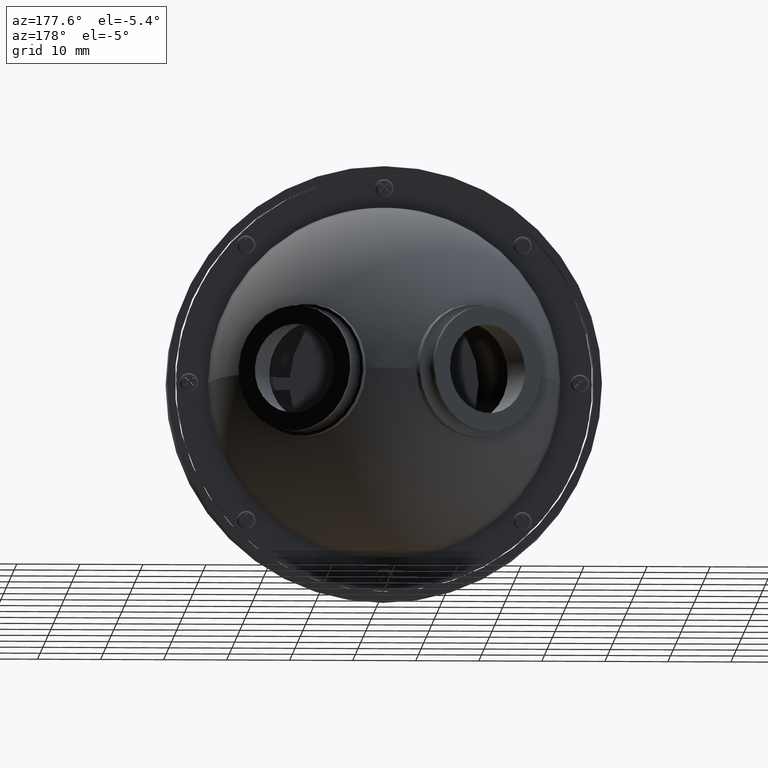
[diagram: clean part render]
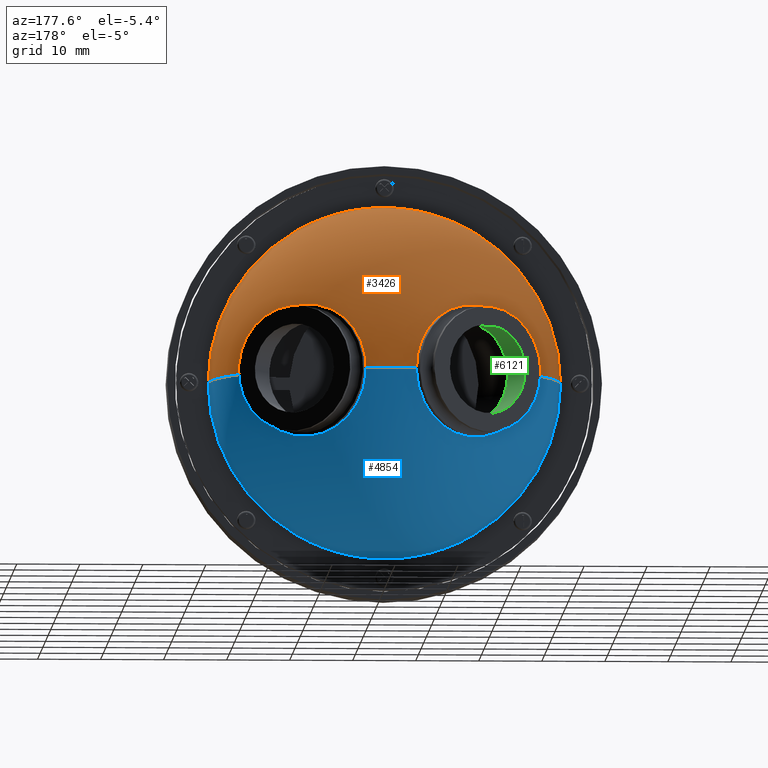
[diagram: same view with three faces highlighted in distinct colors, each labeled with its STEP entity id]
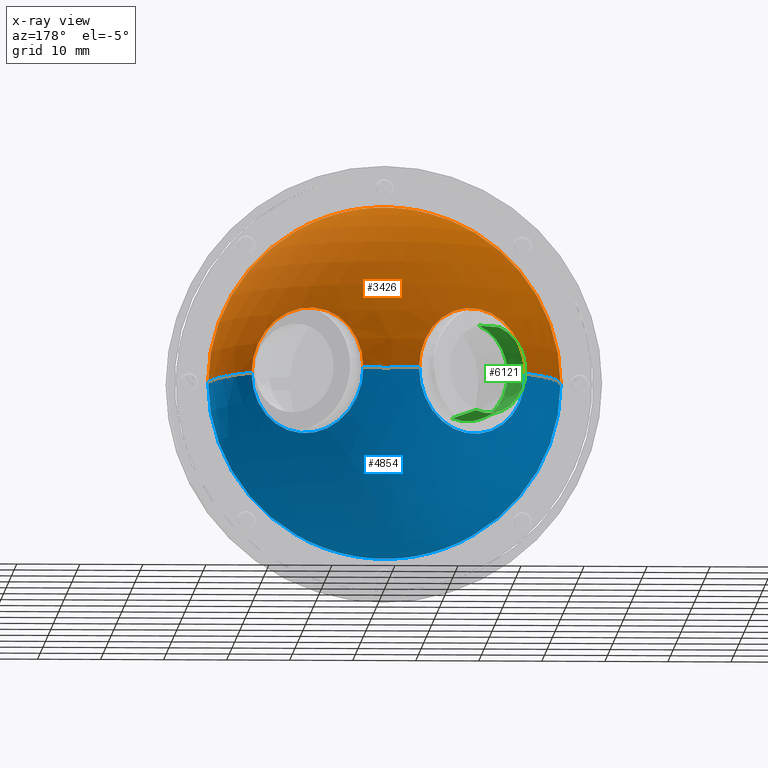
[diagram: x-ray of the same camera — body ghosted, the three highlighted faces saturated]
A machine part, auxiliary view with three faces highlighted in distinct colors.
The next image is the same camera in x-ray (body ghosted, the three faces saturated) — at least one of them is partly hidden behind the body in this view.
Their STEP definitions:

[orange] entity #3426 — the highlighted spherical surface has radius 28 mm.
#152 = AXIS2_PLACEMENT_3D ( 'NONE', #6036, #2718, #2107 ) ;
#230 = ORIENTED_EDGE ( 'NONE', *, *, #2391, .F. ) ;
#250 = VERTEX_POINT ( 'NONE', #361 ) ;
#286 = AXIS2_PLACEMENT_3D ( 'NONE', #2766, #7701, #3227 ) ;
#361 = CARTESIAN_POINT ( 'NONE',  ( 30.22096981807467131, -0.2613625813718961632, 0.000000000000000000 ) ) ;
#418 = CIRCLE ( 'NONE', #152, 27.95979256003163016 ) ;
#437 = CARTESIAN_POINT ( 'NONE',  ( -19.47577361042331745, -16.41086588718419748, 3.424087046346671680E-15 ) ) ;
#447 = CIRCLE ( 'NONE', #5171, 28.00000000000000000 ) ;
#530 = DIRECTION ( 'NONE',  ( 0.000000000000000000, 0.000000000000000000, 1.000000000000000000 ) ) ;
#602 = VERTEX_POINT ( 'NONE', #4543 ) ;
#630 = DIRECTION ( 'NONE',  ( 1.224646799147353207E-16, -0.000000000000000000, 1.000000000000000000 ) ) ;
#702 = DIRECTION ( 'NONE',  ( 1.000000000000000000, 0.000000000000000000, -1.224646799147353207E-16 ) ) ;
#838 = CIRCLE ( 'NONE', #7918, 10.00000000000000711 ) ;
#895 = EDGE_CURVE ( 'NONE', #4437, #3113, #447, .T. ) ;
#1037 = EDGE_CURVE ( 'NONE', #602, #4333, #4901, .T. ) ;
#1288 = DIRECTION ( 'NONE',  ( 0.4999999999999975020, 0.8660254037844400399, 0.000000000000000000 ) ) ;
#1569 = DIRECTION ( 'NONE',  ( 0.8660254037844415942, 0.4999999999999947820, 0.000000000000000000 ) ) ;
#1824 = CARTESIAN_POINT ( 'NONE',  ( 8.484018949608307381, -17.91086588718419748, 0.000000000000000000 ) ) ;
#2107 = DIRECTION ( 'NONE',  ( 0.000000000000000000, 0.000000000000000000, -1.000000000000000000 ) ) ;
#2214 = EDGE_LOOP ( 'NONE', ( #4344, #4687, #6219, #7385, #4581, #7455, #230 ) ) ;
#2273 = CIRCLE ( 'NONE', #286, 28.00000000000000000 ) ;
#2391 = EDGE_CURVE ( 'NONE', #6206, #250, #838, .T. ) ;
#2442 = AXIS2_PLACEMENT_3D ( 'NONE', #1824, #3691, #6197 ) ;
#2718 = DIRECTION ( 'NONE',  ( -0.000000000000000000, 1.000000000000000000, -0.000000000000000000 ) ) ;
#2729 = DIRECTION ( 'NONE',  ( 1.000000000000000000, 0.000000000000000000, -1.224646799147353207E-16 ) ) ;
#2754 = CARTESIAN_POINT ( 'NONE',  ( -4.592677881013579544, 4.738637418628132814, 0.000000000000000000 ) ) ;
#2766 = CARTESIAN_POINT ( 'NONE',  ( 8.484018949608307381, -17.91086588718419748, 0.000000000000000000 ) ) ;
#2781 = CARTESIAN_POINT ( 'NONE',  ( 21.56071578023026447, 4.738637418628083964, 0.000000000000000000 ) ) ;
#3006 = CARTESIAN_POINT ( 'NONE',  ( 8.484018949608307381, -17.91086588718419748, 0.000000000000000000 ) ) ;
#3037 = DIRECTION ( 'NONE',  ( 1.000000000000000000, 0.000000000000000000, 0.000000000000000000 ) ) ;
#3092 = AXIS2_PLACEMENT_3D ( 'NONE', #2754, #6665, #1569 ) ;
#3113 = VERTEX_POINT ( 'NONE', #4897 ) ;
#3227 = DIRECTION ( 'NONE',  ( -1.000000000000000000, 0.000000000000000000, 0.000000000000000000 ) ) ;
#3426 = ADVANCED_FACE ( 'NONE', ( #5597 ), #5510, .T. ) ;
#3612 = CIRCLE ( 'NONE', #2442, 28.00000000000000000 ) ;
#3691 = DIRECTION ( 'NONE',  ( 0.000000000000000000, 0.000000000000000000, -1.000000000000000000 ) ) ;
#3925 = CARTESIAN_POINT ( 'NONE',  ( 12.90046174238585230, 9.738637418628066200, 0.000000000000000000 ) ) ;
#4237 = EDGE_CURVE ( 'NONE', #4333, #5882, #418, .T. ) ;
#4333 = VERTEX_POINT ( 'NONE', #437 ) ;
#4344 = ORIENTED_EDGE ( 'NONE', *, *, #7495, .F. ) ;
#4437 = VERTEX_POINT ( 'NONE', #5734 ) ;
#4462 = EDGE_CURVE ( 'NONE', #250, #5882, #2273, .T. ) ;
#4519 = DIRECTION ( 'NONE',  ( 0.8660254037844400399, -0.4999999999999976685, 0.000000000000000000 ) ) ;
#4543 = CARTESIAN_POINT ( 'NONE',  ( -13.25293191885799615, -0.2613625813718163382, 2.662008730429053827E-15 ) ) ;
#4581 = ORIENTED_EDGE ( 'NONE', *, *, #4237, .T. ) ;
#4641 = AXIS2_PLACEMENT_3D ( 'NONE', #5922, #6451, #2729 ) ;
#4687 = ORIENTED_EDGE ( 'NONE', *, *, #895, .T. ) ;
#4897 = CARTESIAN_POINT ( 'NONE',  ( 4.067576156830836176, 9.738637418628080411, 5.408582529792328972E-16 ) ) ;
#4901 = CIRCLE ( 'NONE', #4641, 28.00000000000000000 ) ;
#5171 = AXIS2_PLACEMENT_3D ( 'NONE', #6334, #630, #702 ) ;
#5510 = SPHERICAL_SURFACE ( 'NONE', #7037, 28.00000000000000000 ) ;
#5597 = FACE_OUTER_BOUND ( 'NONE', #2214, .T. ) ;
#5734 = CARTESIAN_POINT ( 'NONE',  ( 8.484018949608309157, 10.08913411281580075, 0.000000000000000000 ) ) ;
#5882 = VERTEX_POINT ( 'NONE', #7946 ) ;
#5922 = CARTESIAN_POINT ( 'NONE',  ( 8.484018949608307381, -17.91086588718419748, 0.000000000000000000 ) ) ;
#6036 = CARTESIAN_POINT ( 'NONE',  ( 8.484018949608307381, -16.41086588718419748, 0.000000000000000000 ) ) ;
#6197 = DIRECTION ( 'NONE',  ( -1.000000000000000000, 0.000000000000000000, 0.000000000000000000 ) ) ;
#6206 = VERTEX_POINT ( 'NONE', #3925 ) ;
#6219 = ORIENTED_EDGE ( 'NONE', *, *, #6688, .T. ) ;
#6334 = CARTESIAN_POINT ( 'NONE',  ( 8.484018949608307381, -17.91086588718419748, 0.000000000000000000 ) ) ;
#6451 = DIRECTION ( 'NONE',  ( 1.224646799147353207E-16, -0.000000000000000000, 1.000000000000000000 ) ) ;
#6645 = CIRCLE ( 'NONE', #3092, 10.00000000000000178 ) ;
#6665 = DIRECTION ( 'NONE',  ( 0.4999999999999948930, -0.8660254037844417052, -0.000000000000000000 ) ) ;
#6688 = EDGE_CURVE ( 'NONE', #3113, #602, #6645, .T. ) ;
#7037 = AXIS2_PLACEMENT_3D ( 'NONE', #3006, #530, #3037 ) ;
#7385 = ORIENTED_EDGE ( 'NONE', *, *, #1037, .T. ) ;
#7455 = ORIENTED_EDGE ( 'NONE', *, *, #4462, .F. ) ;
#7495 = EDGE_CURVE ( 'NONE', #4437, #6206, #3612, .T. ) ;
#7701 = DIRECTION ( 'NONE',  ( 0.000000000000000000, 0.000000000000000000, -1.000000000000000000 ) ) ;
#7918 = AXIS2_PLACEMENT_3D ( 'NONE', #2781, #1288, #4519 ) ;
#7946 = CARTESIAN_POINT ( 'NONE',  ( 36.44381150963993576, -16.41086588718419748, 0.000000000000000000 ) ) ;

[blue] entity #4854 — the highlighted spherical surface has radius 28 mm.
#16 = CARTESIAN_POINT ( 'NONE',  ( -4.592677881013579544, 4.738637418628132814, 0.000000000000000000 ) ) ;
#162 = FACE_OUTER_BOUND ( 'NONE', #4994, .T. ) ;
#211 = CIRCLE ( 'NONE', #1802, 10.00000000000000711 ) ;
#250 = VERTEX_POINT ( 'NONE', #361 ) ;
#286 = AXIS2_PLACEMENT_3D ( 'NONE', #2766, #7701, #3227 ) ;
#361 = CARTESIAN_POINT ( 'NONE',  ( 30.22096981807467131, -0.2613625813718961632, 0.000000000000000000 ) ) ;
#437 = CARTESIAN_POINT ( 'NONE',  ( -19.47577361042331745, -16.41086588718419748, 3.424087046346671680E-15 ) ) ;
#447 = CIRCLE ( 'NONE', #5171, 28.00000000000000000 ) ;
#602 = VERTEX_POINT ( 'NONE', #4543 ) ;
#630 = DIRECTION ( 'NONE',  ( 1.224646799147353207E-16, -0.000000000000000000, 1.000000000000000000 ) ) ;
#702 = DIRECTION ( 'NONE',  ( 1.000000000000000000, 0.000000000000000000, -1.224646799147353207E-16 ) ) ;
#866 = AXIS2_PLACEMENT_3D ( 'NONE', #5016, #8056, #6802 ) ;
#895 = EDGE_CURVE ( 'NONE', #4437, #3113, #447, .T. ) ;
#1037 = EDGE_CURVE ( 'NONE', #602, #4333, #4901, .T. ) ;
#1395 = CARTESIAN_POINT ( 'NONE',  ( 21.56071578023026447, 4.738637418628083964, 0.000000000000000000 ) ) ;
#1484 = SPHERICAL_SURFACE ( 'NONE', #6343, 28.00000000000000000 ) ;
#1666 = ORIENTED_EDGE ( 'NONE', *, *, #6845, .F. ) ;
#1802 = AXIS2_PLACEMENT_3D ( 'NONE', #1395, #4618, #3278 ) ;
#1824 = CARTESIAN_POINT ( 'NONE',  ( 8.484018949608307381, -17.91086588718419748, 0.000000000000000000 ) ) ;
#1967 = EDGE_CURVE ( 'NONE', #5882, #4333, #2192, .T. ) ;
#2192 = CIRCLE ( 'NONE', #866, 27.95979256003163016 ) ;
#2273 = CIRCLE ( 'NONE', #286, 28.00000000000000000 ) ;
#2319 = CIRCLE ( 'NONE', #6773, 10.00000000000000178 ) ;
#2442 = AXIS2_PLACEMENT_3D ( 'NONE', #1824, #3691, #6197 ) ;
#2729 = DIRECTION ( 'NONE',  ( 1.000000000000000000, 0.000000000000000000, -1.224646799147353207E-16 ) ) ;
#2756 = DIRECTION ( 'NONE',  ( 1.000000000000000000, 0.000000000000000000, 0.000000000000000000 ) ) ;
#2766 = CARTESIAN_POINT ( 'NONE',  ( 8.484018949608307381, -17.91086588718419748, 0.000000000000000000 ) ) ;
#3113 = VERTEX_POINT ( 'NONE', #4897 ) ;
#3227 = DIRECTION ( 'NONE',  ( -1.000000000000000000, 0.000000000000000000, 0.000000000000000000 ) ) ;
#3245 = ORIENTED_EDGE ( 'NONE', *, *, #4462, .T. ) ;
#3278 = DIRECTION ( 'NONE',  ( 0.8660254037844400399, -0.4999999999999976685, 0.000000000000000000 ) ) ;
#3612 = CIRCLE ( 'NONE', #2442, 28.00000000000000000 ) ;
#3691 = DIRECTION ( 'NONE',  ( 0.000000000000000000, 0.000000000000000000, -1.000000000000000000 ) ) ;
#3925 = CARTESIAN_POINT ( 'NONE',  ( 12.90046174238585230, 9.738637418628066200, 0.000000000000000000 ) ) ;
#4333 = VERTEX_POINT ( 'NONE', #437 ) ;
#4437 = VERTEX_POINT ( 'NONE', #5734 ) ;
#4462 = EDGE_CURVE ( 'NONE', #250, #5882, #2273, .T. ) ;
#4543 = CARTESIAN_POINT ( 'NONE',  ( -13.25293191885799615, -0.2613625813718163382, 2.662008730429053827E-15 ) ) ;
#4618 = DIRECTION ( 'NONE',  ( 0.4999999999999975020, 0.8660254037844400399, 0.000000000000000000 ) ) ;
#4641 = AXIS2_PLACEMENT_3D ( 'NONE', #5922, #6451, #2729 ) ;
#4854 = ADVANCED_FACE ( 'NONE', ( #162 ), #1484, .T. ) ;
#4897 = CARTESIAN_POINT ( 'NONE',  ( 4.067576156830836176, 9.738637418628080411, 5.408582529792328972E-16 ) ) ;
#4901 = CIRCLE ( 'NONE', #4641, 28.00000000000000000 ) ;
#4953 = ORIENTED_EDGE ( 'NONE', *, *, #895, .F. ) ;
#4959 = DIRECTION ( 'NONE',  ( 0.4999999999999948930, -0.8660254037844417052, -0.000000000000000000 ) ) ;
#4994 = EDGE_LOOP ( 'NONE', ( #4953, #6158, #1666, #3245, #7336, #5369, #5107 ) ) ;
#5016 = CARTESIAN_POINT ( 'NONE',  ( 8.484018949608307381, -16.41086588718419748, 0.000000000000000000 ) ) ;
#5107 = ORIENTED_EDGE ( 'NONE', *, *, #7861, .T. ) ;
#5135 = CARTESIAN_POINT ( 'NONE',  ( 8.484018949608307381, -17.91086588718419748, 0.000000000000000000 ) ) ;
#5171 = AXIS2_PLACEMENT_3D ( 'NONE', #6334, #630, #702 ) ;
#5224 = DIRECTION ( 'NONE',  ( 0.000000000000000000, 0.000000000000000000, 1.000000000000000000 ) ) ;
#5369 = ORIENTED_EDGE ( 'NONE', *, *, #1037, .F. ) ;
#5734 = CARTESIAN_POINT ( 'NONE',  ( 8.484018949608309157, 10.08913411281580075, 0.000000000000000000 ) ) ;
#5882 = VERTEX_POINT ( 'NONE', #7946 ) ;
#5922 = CARTESIAN_POINT ( 'NONE',  ( 8.484018949608307381, -17.91086588718419748, 0.000000000000000000 ) ) ;
#6158 = ORIENTED_EDGE ( 'NONE', *, *, #7495, .T. ) ;
#6197 = DIRECTION ( 'NONE',  ( -1.000000000000000000, 0.000000000000000000, 0.000000000000000000 ) ) ;
#6206 = VERTEX_POINT ( 'NONE', #3925 ) ;
#6334 = CARTESIAN_POINT ( 'NONE',  ( 8.484018949608307381, -17.91086588718419748, 0.000000000000000000 ) ) ;
#6343 = AXIS2_PLACEMENT_3D ( 'NONE', #5135, #5224, #2756 ) ;
#6451 = DIRECTION ( 'NONE',  ( 1.224646799147353207E-16, -0.000000000000000000, 1.000000000000000000 ) ) ;
#6773 = AXIS2_PLACEMENT_3D ( 'NONE', #16, #4959, #7547 ) ;
#6802 = DIRECTION ( 'NONE',  ( 0.000000000000000000, 0.000000000000000000, -1.000000000000000000 ) ) ;
#6845 = EDGE_CURVE ( 'NONE', #250, #6206, #211, .T. ) ;
#7336 = ORIENTED_EDGE ( 'NONE', *, *, #1967, .T. ) ;
#7495 = EDGE_CURVE ( 'NONE', #4437, #6206, #3612, .T. ) ;
#7547 = DIRECTION ( 'NONE',  ( 0.8660254037844415942, 0.4999999999999947820, 0.000000000000000000 ) ) ;
#7701 = DIRECTION ( 'NONE',  ( 0.000000000000000000, 0.000000000000000000, -1.000000000000000000 ) ) ;
#7861 = EDGE_CURVE ( 'NONE', #602, #3113, #2319, .T. ) ;
#7946 = CARTESIAN_POINT ( 'NONE',  ( 36.44381150963993576, -16.41086588718419748, 0.000000000000000000 ) ) ;
#8056 = DIRECTION ( 'NONE',  ( -0.000000000000000000, 1.000000000000000000, -0.000000000000000000 ) ) ;

[green] entity #6121 — the highlighted conical surface has half-angle 7.326 deg.
#137 = VERTEX_POINT ( 'NONE', #4380 ) ;
#168 = DIRECTION ( 'NONE',  ( 0.2712180811185178619, 0.1565878321428679221, -0.9496952160031060242 ) ) ;
#234 = EDGE_CURVE ( 'NONE', #1964, #6151, #3983, .T. ) ;
#240 = DIRECTION ( 'NONE',  ( 0.5305040899661679354, -0.8389866245831228975, -0.1211067888261678493 ) ) ;
#267 = DIRECTION ( 'NONE',  ( -0.2712180811185179174, -0.1565878321428678943, 0.9496952160031060242 ) ) ;
#739 = VECTOR ( 'NONE', #3039, 999.9999999999998863 ) ;
#888 = DIRECTION ( 'NONE',  ( -0.4999999999999947820, 0.8660254037844415942, 0.000000000000000000 ) ) ;
#1038 = ORIENTED_EDGE ( 'NONE', *, *, #2812, .F. ) ;
#1233 = EDGE_LOOP ( 'NONE', ( #1968, #7094, #1038, #5264 ) ) ;
#1964 = VERTEX_POINT ( 'NONE', #5640 ) ;
#1968 = ORIENTED_EDGE ( 'NONE', *, *, #234, .F. ) ;
#2119 = DIRECTION ( 'NONE',  ( 0.4999999999999947820, -0.8660254037844415942, -0.000000000000000000 ) ) ;
#2659 = VERTEX_POINT ( 'NONE', #3682 ) ;
#2812 = EDGE_CURVE ( 'NONE', #2659, #137, #7141, .T. ) ;
#2824 = LINE ( 'NONE', #4055, #739 ) ;
#3039 = DIRECTION ( 'NONE',  ( 0.4613316853412479102, -0.8789233310138137023, 0.1211067888261678493 ) ) ;
#3222 = CARTESIAN_POINT ( 'NONE',  ( -4.926715865112028858, 9.741932921295955339, -6.708918347336227939 ) ) ;
#3389 = DIRECTION ( 'NONE',  ( -0.2712180811185179174, -0.1565878321428678666, 0.9496952160031060242 ) ) ;
#3682 = CARTESIAN_POINT ( 'NONE',  ( -1.450055040177301580, 4.243630484987908957, -7.502592206424537835 ) ) ;
#3983 = CIRCLE ( 'NONE', #7647, 7.064285714285714057 ) ;
#4023 = CARTESIAN_POINT ( 'NONE',  ( -6.842677881013559116, 8.635751735658123707, 0.000000000000000000 ) ) ;
#4033 = AXIS2_PLACEMENT_3D ( 'NONE', #7046, #2119, #168 ) ;
#4055 = CARTESIAN_POINT ( 'NONE',  ( -5.735300721849882599, 1.769542737130596732, 7.502592206424537835 ) ) ;
#4100 = LINE ( 'NONE', #5878, #7890 ) ;
#4207 = EDGE_CURVE ( 'NONE', #6151, #2659, #4100, .T. ) ;
#4380 = CARTESIAN_POINT ( 'NONE',  ( -5.735300721849882599, 1.769542737130596954, 7.502592206424537835 ) ) ;
#4583 = DIRECTION ( 'NONE',  ( 0.4999999999999947820, -0.8660254037844415942, -0.000000000000000000 ) ) ;
#5264 = ORIENTED_EDGE ( 'NONE', *, *, #4207, .F. ) ;
#5640 = CARTESIAN_POINT ( 'NONE',  ( -8.758639896915088485, 7.529570550020292963, 6.708918347336227050 ) ) ;
#5878 = CARTESIAN_POINT ( 'NONE',  ( -1.450055040177301580, 4.243630484987908957, -7.502592206424537835 ) ) ;
#6121 = ADVANCED_FACE ( 'NONE', ( #6453 ), #6520, .F. ) ;
#6151 = VERTEX_POINT ( 'NONE', #3222 ) ;
#6453 = FACE_OUTER_BOUND ( 'NONE', #1233, .T. ) ;
#6518 = CARTESIAN_POINT ( 'NONE',  ( -3.592677881013592867, 3.006586611059252512, 0.000000000000000000 ) ) ;
#6520 = CONICAL_SURFACE ( 'NONE', #4033, 7.900000000000000355, 0.1278699185599999621 ) ;
#6862 = EDGE_CURVE ( 'NONE', #1964, #137, #2824, .T. ) ;
#7046 = CARTESIAN_POINT ( 'NONE',  ( -3.592677881013592867, 3.006586611059252512, 0.000000000000000000 ) ) ;
#7094 = ORIENTED_EDGE ( 'NONE', *, *, #6862, .T. ) ;
#7141 = CIRCLE ( 'NONE', #7798, 7.900000000000000355 ) ;
#7647 = AXIS2_PLACEMENT_3D ( 'NONE', #4023, #4583, #267 ) ;
#7798 = AXIS2_PLACEMENT_3D ( 'NONE', #6518, #888, #3389 ) ;
#7890 = VECTOR ( 'NONE', #240, 1000.000000000000114 ) ;